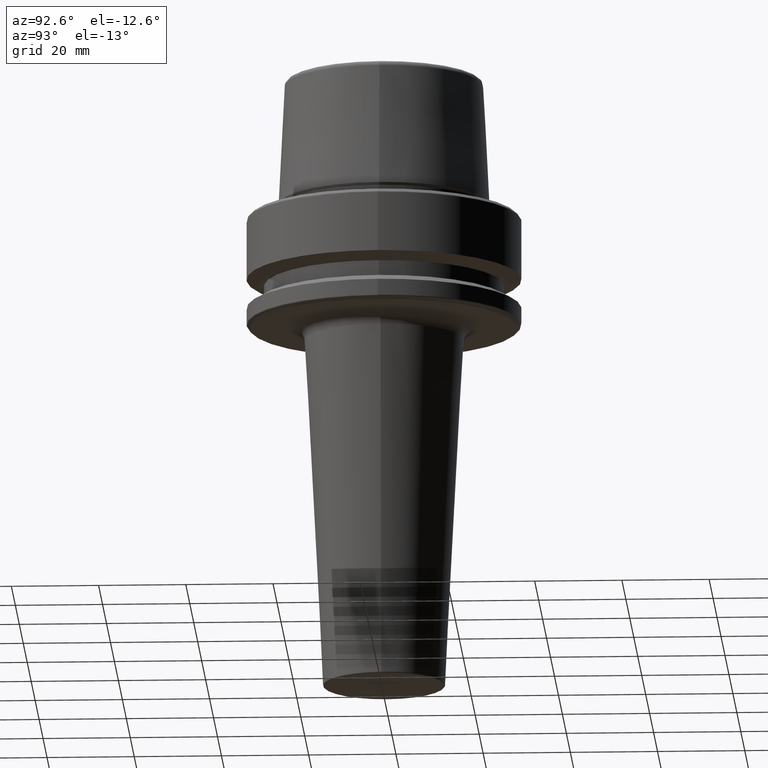
[diagram: clean part render]
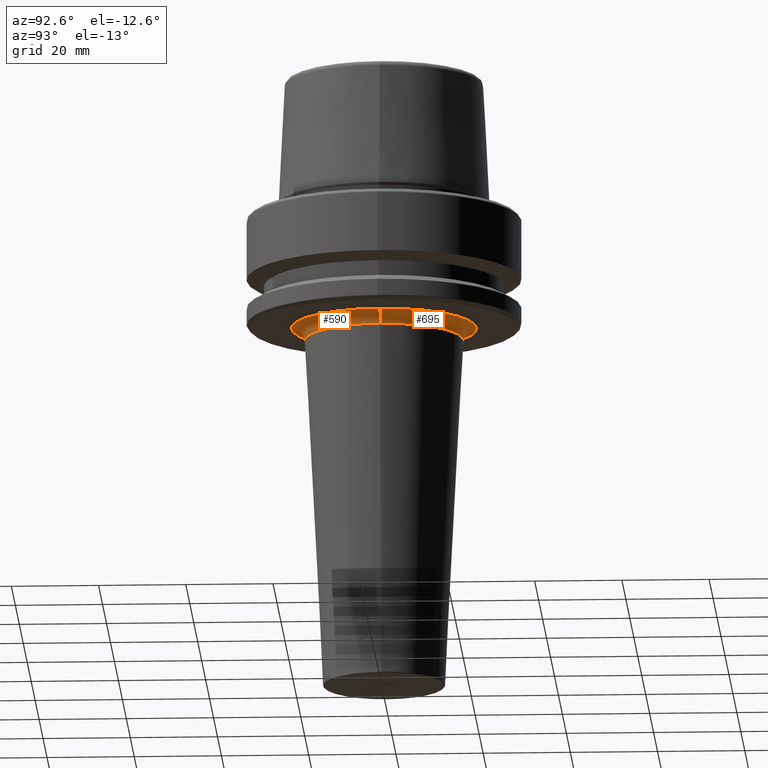
[diagram: same view with one multi-face feature highlighted, each face labeled with its STEP entity id]
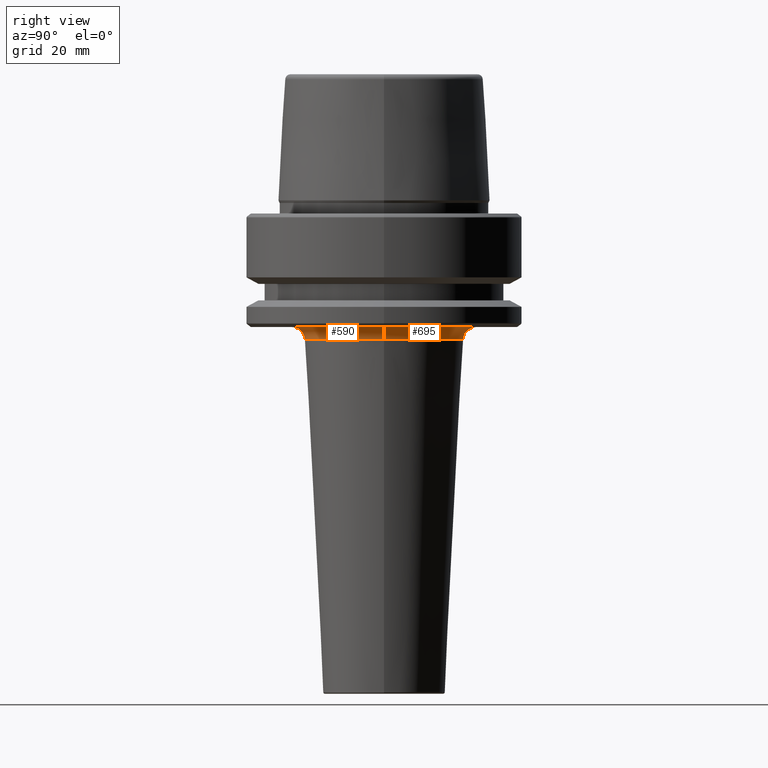
[diagram: same view with one multi-face feature highlighted, each face labeled with its STEP entity id]
A machine part, auxiliary view. The highlighted faces form ONE feature: a constant-radius fillet chain: 2 tangent blend faces with common blend radius 3 mm. The faces share edges in the B-rep.
A second angle (right view) of the same feature is appended — it is thin or edge-on in the first view.
Their STEP definitions:
[1] entity #695 (Torus):
#22 = EDGE_CURVE ( 'NONE', #759, #196, #1237, .T. ) ;
#38 = DIRECTION ( 'NONE',  ( -1.000000000000000000, 1.224646799147353500E-016, 0.0000000000000000000 ) ) ;
#140 = ORIENTED_EDGE ( 'NONE', *, *, #242, .T. ) ;
#196 = VERTEX_POINT ( 'NONE', #660 ) ;
#223 = ORIENTED_EDGE ( 'NONE', *, *, #22, .F. ) ;
#242 = EDGE_CURVE ( 'NONE', #958, #196, #1103, .T. ) ;
#295 = AXIS2_PLACEMENT_3D ( 'NONE', #480, #1015, #1229 ) ;
#337 = ORIENTED_EDGE ( 'NONE', *, *, #512, .F. ) ;
#340 = CARTESIAN_POINT ( 'NONE',  ( -18.25325855565639100, 2.235379466419364000E-015, -28.84299213127116700 ) ) ;
#346 = TOROIDAL_SURFACE ( 'NONE', #944, 21.24914715992011300, 3.000000000000000000 ) ;
#356 = CIRCLE ( 'NONE', #965, 21.24914715992011300 ) ;
#357 = DIRECTION ( 'NONE',  ( 0.0000000000000000000, 0.0000000000000000000, -1.000000000000000000 ) ) ;
#360 = DIRECTION ( 'NONE',  ( 0.0000000000000000000, -1.000000000000000000, 0.0000000000000000000 ) ) ;
#371 = CARTESIAN_POINT ( 'NONE',  ( 21.24914715992011300, 0.0000000000000000000, -28.99999999999999600 ) ) ;
#394 = CARTESIAN_POINT ( 'NONE',  ( 21.24914715992011300, 0.0000000000000000000, -26.00000000000000400 ) ) ;
#471 = AXIS2_PLACEMENT_3D ( 'NONE', #1013, #1110, #38 ) ;
#476 = DIRECTION ( 'NONE',  ( 1.000000000000000000, 0.0000000000000000000, 0.0000000000000000000 ) ) ;
#480 = CARTESIAN_POINT ( 'NONE',  ( 0.0000000000000000000, 0.0000000000000000000, -28.84299213127116700 ) ) ;
#482 = DIRECTION ( 'NONE',  ( -0.0000000000000000000, -0.0000000000000000000, 1.000000000000000000 ) ) ;
#502 = CARTESIAN_POINT ( 'NONE',  ( 0.0000000000000000000, 0.0000000000000000000, -28.99999999999999600 ) ) ;
#512 = EDGE_CURVE ( 'NONE', #958, #824, #356, .T. ) ;
#660 = CARTESIAN_POINT ( 'NONE',  ( 18.25325855565639100, 0.0000000000000000000, -28.84299213127116700 ) ) ;
#695 = ADVANCED_FACE ( 'NONE', ( #1046 ), #346, .F. ) ;
#733 = CARTESIAN_POINT ( 'NONE',  ( -21.24914715992011300, 2.602270005400724000E-015, -26.00000000000000400 ) ) ;
#747 = AXIS2_PLACEMENT_3D ( 'NONE', #371, #360, #357 ) ;
#759 = VERTEX_POINT ( 'NONE', #340 ) ;
#824 = VERTEX_POINT ( 'NONE', #733 ) ;
#838 = EDGE_CURVE ( 'NONE', #824, #759, #962, .T. ) ;
#944 = AXIS2_PLACEMENT_3D ( 'NONE', #502, #482, #476 ) ;
#958 = VERTEX_POINT ( 'NONE', #394 ) ;
#960 = EDGE_LOOP ( 'NONE', ( #1020, #337, #140, #223 ) ) ;
#962 = CIRCLE ( 'NONE', #471, 2.999999999999999100 ) ;
#965 = AXIS2_PLACEMENT_3D ( 'NONE', #1253, #1250, #1247 ) ;
#1013 = CARTESIAN_POINT ( 'NONE',  ( -21.24914715992011300, 2.602270005400724000E-015, -28.99999999999999600 ) ) ;
#1015 = DIRECTION ( 'NONE',  ( 0.0000000000000000000, 0.0000000000000000000, -1.000000000000000000 ) ) ;
#1020 = ORIENTED_EDGE ( 'NONE', *, *, #838, .F. ) ;
#1046 = FACE_OUTER_BOUND ( 'NONE', #960, .T. ) ;
#1103 = CIRCLE ( 'NONE', #747, 3.000000000000002700 ) ;
#1110 = DIRECTION ( 'NONE',  ( 1.224646799147353200E-016, 1.000000000000000000, 0.0000000000000000000 ) ) ;
#1229 = DIRECTION ( 'NONE',  ( 1.000000000000000000, 0.0000000000000000000, 0.0000000000000000000 ) ) ;
#1237 = CIRCLE ( 'NONE', #295, 18.25325855565639800 ) ;
#1247 = DIRECTION ( 'NONE',  ( 1.000000000000000000, 0.0000000000000000000, 0.0000000000000000000 ) ) ;
#1250 = DIRECTION ( 'NONE',  ( -0.0000000000000000000, -0.0000000000000000000, 1.000000000000000000 ) ) ;
#1253 = CARTESIAN_POINT ( 'NONE',  ( 0.0000000000000000000, 0.0000000000000000000, -26.00000000000000700 ) ) ;
[2] entity #590 (Torus):
#15 = EDGE_CURVE ( 'NONE', #196, #759, #930, .T. ) ;
#38 = DIRECTION ( 'NONE',  ( -1.000000000000000000, 1.224646799147353500E-016, 0.0000000000000000000 ) ) ;
#154 = AXIS2_PLACEMENT_3D ( 'NONE', #1024, #1035, #1101 ) ;
#180 = ORIENTED_EDGE ( 'NONE', *, *, #838, .T. ) ;
#196 = VERTEX_POINT ( 'NONE', #660 ) ;
#233 = AXIS2_PLACEMENT_3D ( 'NONE', #826, #1127, #1072 ) ;
#240 = ORIENTED_EDGE ( 'NONE', *, *, #15, .F. ) ;
#242 = EDGE_CURVE ( 'NONE', #958, #196, #1103, .T. ) ;
#340 = CARTESIAN_POINT ( 'NONE',  ( -18.25325855565639100, 2.235379466419364000E-015, -28.84299213127116700 ) ) ;
#357 = DIRECTION ( 'NONE',  ( 0.0000000000000000000, 0.0000000000000000000, -1.000000000000000000 ) ) ;
#360 = DIRECTION ( 'NONE',  ( 0.0000000000000000000, -1.000000000000000000, 0.0000000000000000000 ) ) ;
#364 = AXIS2_PLACEMENT_3D ( 'NONE', #842, #837, #833 ) ;
#371 = CARTESIAN_POINT ( 'NONE',  ( 21.24914715992011300, 0.0000000000000000000, -28.99999999999999600 ) ) ;
#394 = CARTESIAN_POINT ( 'NONE',  ( 21.24914715992011300, 0.0000000000000000000, -26.00000000000000400 ) ) ;
#467 = ORIENTED_EDGE ( 'NONE', *, *, #242, .F. ) ;
#468 = FACE_OUTER_BOUND ( 'NONE', #686, .T. ) ;
#471 = AXIS2_PLACEMENT_3D ( 'NONE', #1013, #1110, #38 ) ;
#590 = ADVANCED_FACE ( 'NONE', ( #468 ), #975, .F. ) ;
#631 = EDGE_CURVE ( 'NONE', #824, #958, #819, .T. ) ;
#660 = CARTESIAN_POINT ( 'NONE',  ( 18.25325855565639100, 0.0000000000000000000, -28.84299213127116700 ) ) ;
#686 = EDGE_LOOP ( 'NONE', ( #896, #180, #240, #467 ) ) ;
#733 = CARTESIAN_POINT ( 'NONE',  ( -21.24914715992011300, 2.602270005400724000E-015, -26.00000000000000400 ) ) ;
#747 = AXIS2_PLACEMENT_3D ( 'NONE', #371, #360, #357 ) ;
#759 = VERTEX_POINT ( 'NONE', #340 ) ;
#819 = CIRCLE ( 'NONE', #364, 21.24914715992011300 ) ;
#824 = VERTEX_POINT ( 'NONE', #733 ) ;
#826 = CARTESIAN_POINT ( 'NONE',  ( 0.0000000000000000000, 0.0000000000000000000, -28.84299213127116700 ) ) ;
#833 = DIRECTION ( 'NONE',  ( 1.000000000000000000, 0.0000000000000000000, 0.0000000000000000000 ) ) ;
#837 = DIRECTION ( 'NONE',  ( -0.0000000000000000000, -0.0000000000000000000, 1.000000000000000000 ) ) ;
#838 = EDGE_CURVE ( 'NONE', #824, #759, #962, .T. ) ;
#842 = CARTESIAN_POINT ( 'NONE',  ( 0.0000000000000000000, 0.0000000000000000000, -26.00000000000000700 ) ) ;
#896 = ORIENTED_EDGE ( 'NONE', *, *, #631, .F. ) ;
#930 = CIRCLE ( 'NONE', #233, 18.25325855565639800 ) ;
#958 = VERTEX_POINT ( 'NONE', #394 ) ;
#962 = CIRCLE ( 'NONE', #471, 2.999999999999999100 ) ;
#975 = TOROIDAL_SURFACE ( 'NONE', #154, 21.24914715992011300, 3.000000000000000000 ) ;
#1013 = CARTESIAN_POINT ( 'NONE',  ( -21.24914715992011300, 2.602270005400724000E-015, -28.99999999999999600 ) ) ;
#1024 = CARTESIAN_POINT ( 'NONE',  ( 0.0000000000000000000, 0.0000000000000000000, -28.99999999999999600 ) ) ;
#1035 = DIRECTION ( 'NONE',  ( -0.0000000000000000000, -0.0000000000000000000, 1.000000000000000000 ) ) ;
#1072 = DIRECTION ( 'NONE',  ( 1.000000000000000000, 0.0000000000000000000, 0.0000000000000000000 ) ) ;
#1101 = DIRECTION ( 'NONE',  ( 1.000000000000000000, 0.0000000000000000000, 0.0000000000000000000 ) ) ;
#1103 = CIRCLE ( 'NONE', #747, 3.000000000000002700 ) ;
#1110 = DIRECTION ( 'NONE',  ( 1.224646799147353200E-016, 1.000000000000000000, 0.0000000000000000000 ) ) ;
#1127 = DIRECTION ( 'NONE',  ( 0.0000000000000000000, 0.0000000000000000000, -1.000000000000000000 ) ) ;